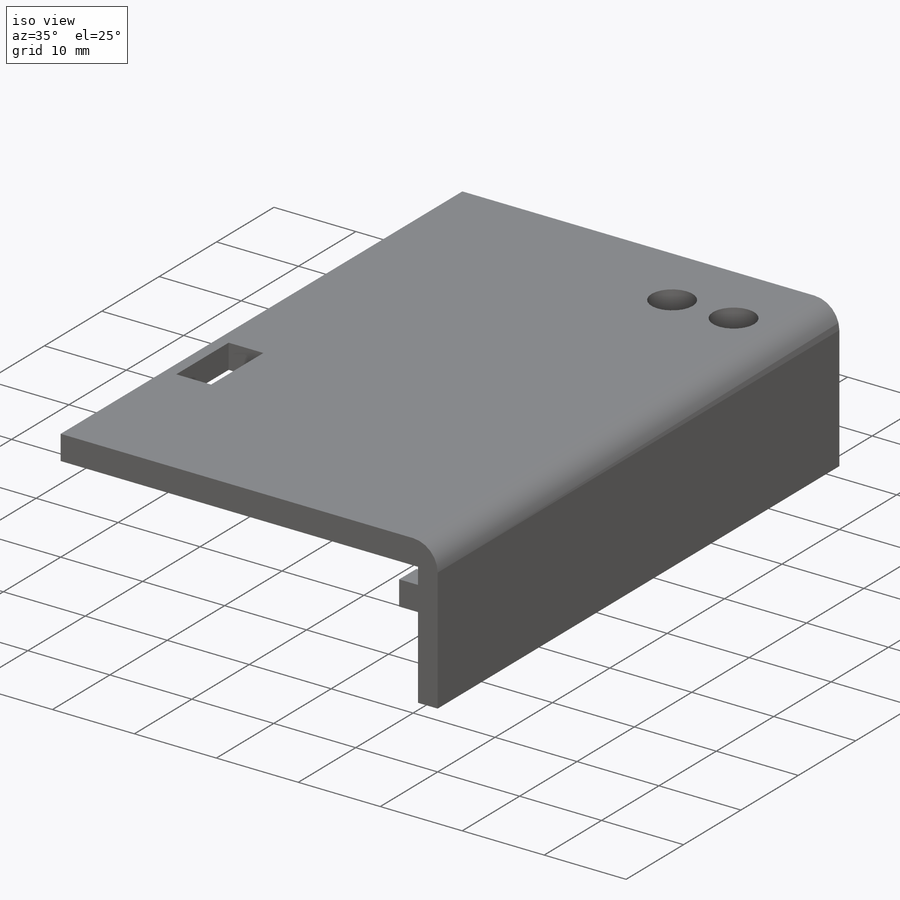
[diagram: iso view]
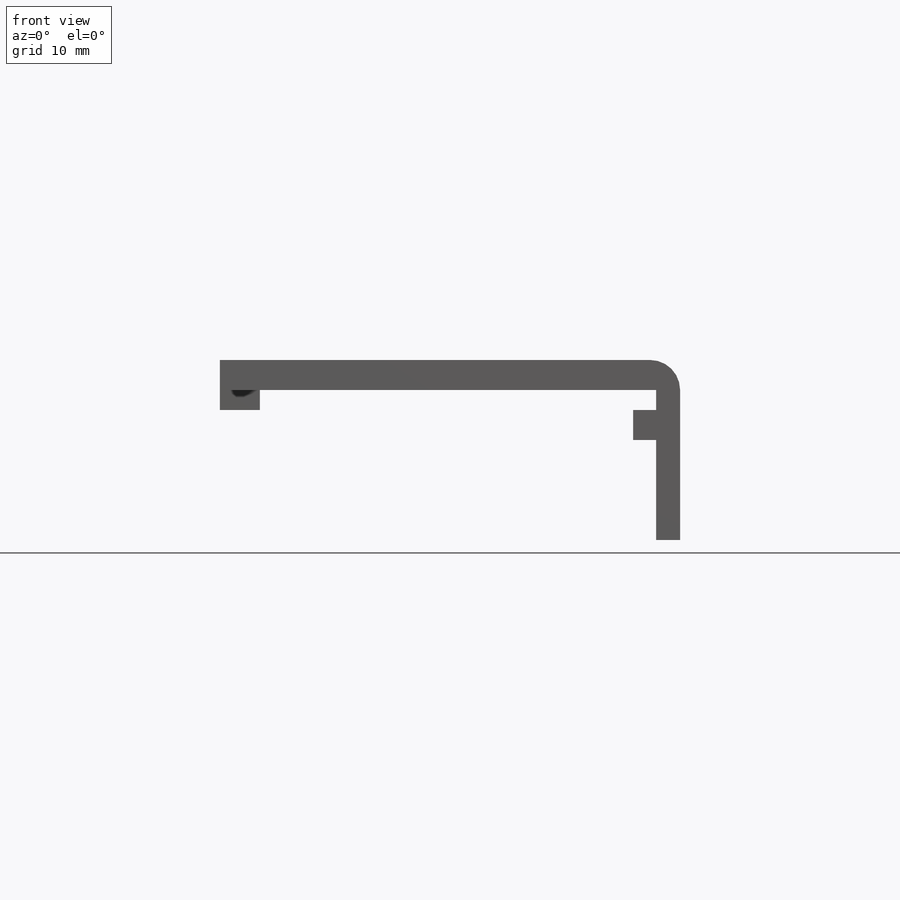
[diagram: front view]
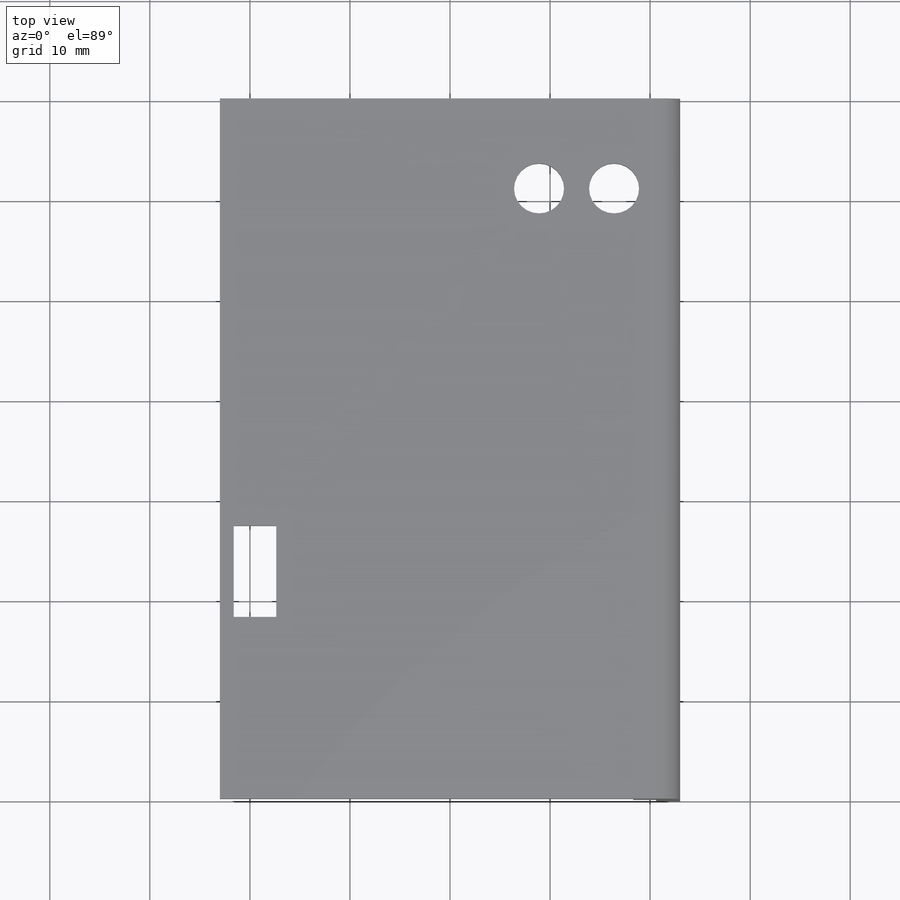
[diagram: top view]
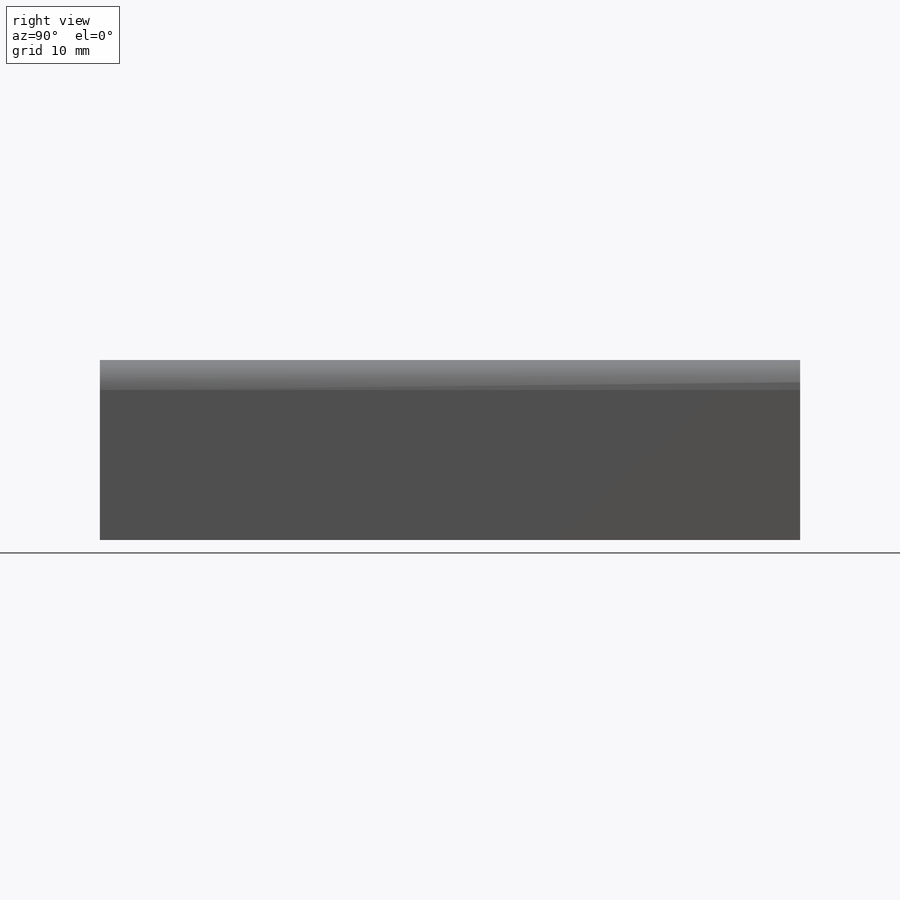
[diagram: right view]
SOLIDWORKS PART (.sldprt)
format: sldprt  version: not decoded by parser v0  size: 228,864 bytes
history: native  units: mm
features: sketch x6, extrude x3, cut_extrude x3, material x1, fillet x1 (+14 scaffold rows collapsed)
feature tree (28):
  scaffold x14  (default folders/planes/origin — collapsed)
  material  "Material <not specified>"
  sketch  "Sketch1"  dims[D1=46.0mm D2=18.0mm D3=3.0mm D4=2.4mm]
  extrude  "Extrude1"  Depth=70mm
  sketch  "Sketch2"  dims[D1=3.0mm D2=3.0mm D3=2.0mm]
  extrude  "Extrude2"  Depth=2.3mm
  sketch  "Sketch3"  dims[D1=5.5mm D2=5.0mm D3=4.0mm D4=5.5mm]
  extrude  "Extrude3"  Depth=2mm
  sketch  "Sketch4"  dims[D1=2.0mm D2=8.0mm D3=8.0mm D4=2.25mm]
  cut_extrude  "Extrude4"  Depth=5mm
  fillet  "Fillet1"  Radius=3mm
  sketch  "Sketch5"  dims[D3=5.0mm D1=6.6mm D2=7.5mm D4=9.0mm]
  cut_extrude  "Extrude6"  Depth=5mm
  sketch  "Sketch6"
  cut_extrude  "Cut-Extrude1"  Depth=10mm
decode coverage: 12 of 13 modeling features carry decoded parameters
note: suppression state not decoded; provenance and decode notes live in map.json
